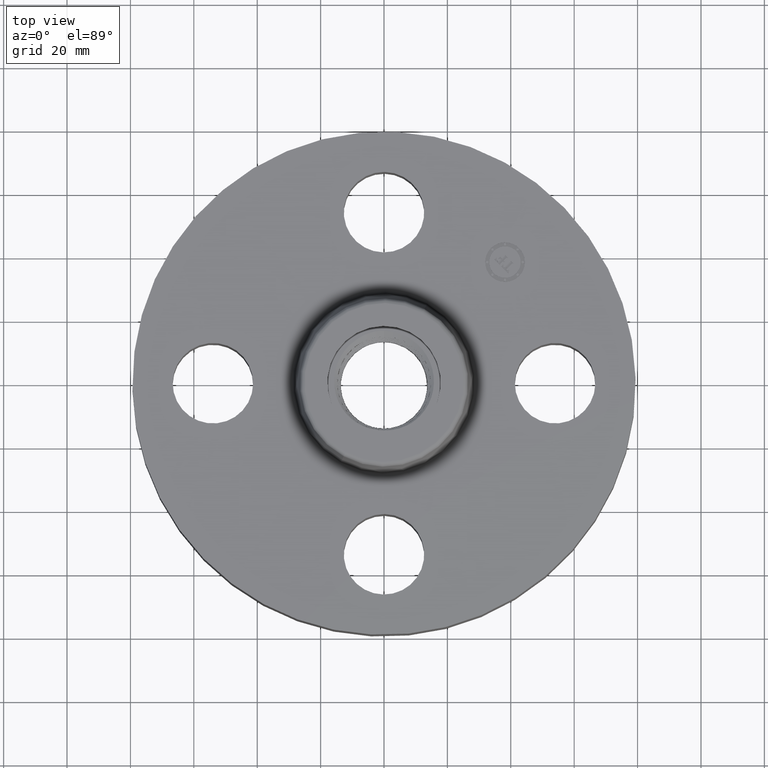
[diagram: clean part render]
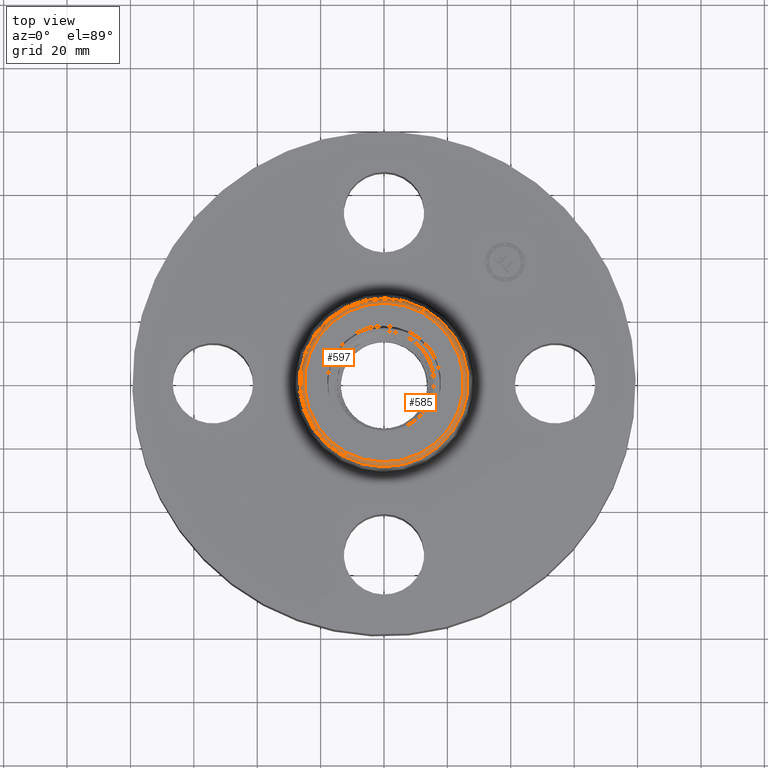
[diagram: same view with one multi-face feature highlighted, each face labeled with its STEP entity id]
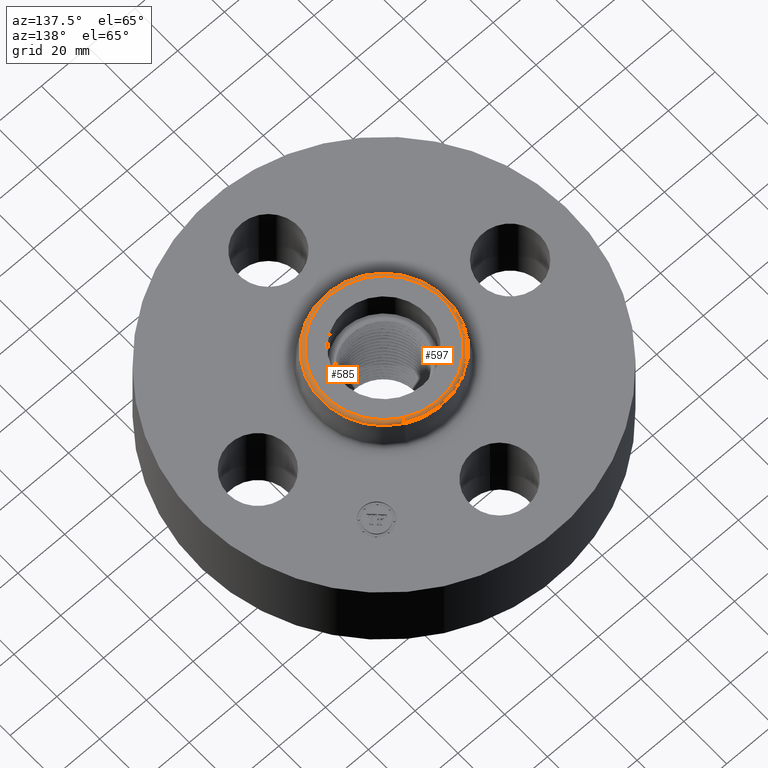
[diagram: same view with one multi-face feature highlighted, each face labeled with its STEP entity id]
A machine part, top view. The highlighted faces form ONE feature: a constant-radius fillet chain: 2 tangent blend faces with common blend radius 1.524 mm. The faces share edges in the B-rep.
A second angle (auxiliary view) of the same feature is appended — it is thin or edge-on in the first view.
Their STEP definitions:
[1] entity #597 (Torus):
#545=AXIS2_PLACEMENT_3D('Circle Axis2P3D',#543,#544,$) ;
#558=AXIS2_PLACEMENT_3D('Torus Axis2P3D',#555,#556,#557) ;
#562=AXIS2_PLACEMENT_3D('Circle Axis2P3D',#560,#561,$) ;
#576=AXIS2_PLACEMENT_3D('Circle Axis2P3D',#574,#575,$) ;
#588=AXIS2_PLACEMENT_3D('Circle Axis2P3D',#586,#587,$) ;
#521=CARTESIAN_POINT('Vertex',(0.501277273771,0.917581894811,1.83041889067)) ;
#528=CARTESIAN_POINT('Vertex',(-0.501277273771,-0.917581894811,1.83041889067)) ;
#543=CARTESIAN_POINT('Axis2P3D Location',(0.,0.,1.83041889067)) ;
#555=CARTESIAN_POINT('Axis2P3D Location',(0.,0.,1.82000000001)) ;
#560=CARTESIAN_POINT('Axis2P3D Location',(0.472948754526,0.865726888159,1.82000000001)) ;
#564=CARTESIAN_POINT('Vertex',(0.472948754526,0.865726888159,1.88000000001)) ;
#571=CARTESIAN_POINT('Vertex',(-0.472948754526,-0.865726888159,1.88000000001)) ;
#574=CARTESIAN_POINT('Axis2P3D Location',(-0.472948754526,-0.865726888159,1.82000000001)) ;
#586=CARTESIAN_POINT('Axis2P3D Location',(0.,0.,1.88000000001)) ;
#544=DIRECTION('Axis2P3D Direction',(0.,0.,-0.0393700787402)) ;
#556=DIRECTION('Axis2P3D Direction',(0.,0.,-0.0393700787402)) ;
#557=DIRECTION('Axis2P3D XDirection',(-0.0188750212049,-0.0345504945626,0.)) ;
#561=DIRECTION('Axis2P3D Direction',(-0.0345504945626,0.0188750212049,0.)) ;
#575=DIRECTION('Axis2P3D Direction',(0.0345504945626,-0.0188750212049,0.)) ;
#587=DIRECTION('Axis2P3D Direction',(0.,0.,-0.0393700787402)) ;
#592=ORIENTED_EDGE('',*,*,#547,.F.) ;
#593=ORIENTED_EDGE('',*,*,#578,.T.) ;
#594=ORIENTED_EDGE('',*,*,#590,.T.) ;
#595=ORIENTED_EDGE('',*,*,#566,.F.) ;
#597=ADVANCED_FACE('PartBody',(#596),#559,.T.) ;
#546=CIRCLE('generated circle',#545,1.04557899696) ;
#563=CIRCLE('generated circle',#562,0.0600000000002) ;
#577=CIRCLE('generated circle',#576,0.0600000000002) ;
#589=CIRCLE('generated circle',#588,0.986490531779) ;
#559=TOROIDAL_SURFACE('homeo Torus',#558,0.986490531779,0.0600000000002) ;
#547=EDGE_CURVE('',#529,#522,#546,.T.) ;
#566=EDGE_CURVE('',#522,#565,#563,.F.) ;
#578=EDGE_CURVE('',#529,#572,#577,.F.) ;
#590=EDGE_CURVE('',#572,#565,#589,.T.) ;
#591=EDGE_LOOP('',(#592,#593,#594,#595)) ;
#596=FACE_OUTER_BOUND('',#591,.T.) ;
#522=VERTEX_POINT('',#521) ;
#529=VERTEX_POINT('',#528) ;
#565=VERTEX_POINT('',#564) ;
#572=VERTEX_POINT('',#571) ;
[2] entity #585 (Torus):
#526=AXIS2_PLACEMENT_3D('Circle Axis2P3D',#524,#525,$) ;
#558=AXIS2_PLACEMENT_3D('Torus Axis2P3D',#555,#556,#557) ;
#562=AXIS2_PLACEMENT_3D('Circle Axis2P3D',#560,#561,$) ;
#569=AXIS2_PLACEMENT_3D('Circle Axis2P3D',#567,#568,$) ;
#576=AXIS2_PLACEMENT_3D('Circle Axis2P3D',#574,#575,$) ;
#521=CARTESIAN_POINT('Vertex',(0.501277273771,0.917581894811,1.83041889067)) ;
#524=CARTESIAN_POINT('Axis2P3D Location',(0.,0.,1.83041889067)) ;
#528=CARTESIAN_POINT('Vertex',(-0.501277273771,-0.917581894811,1.83041889067)) ;
#555=CARTESIAN_POINT('Axis2P3D Location',(0.,0.,1.82000000001)) ;
#560=CARTESIAN_POINT('Axis2P3D Location',(0.472948754526,0.865726888159,1.82000000001)) ;
#564=CARTESIAN_POINT('Vertex',(0.472948754526,0.865726888159,1.88000000001)) ;
#567=CARTESIAN_POINT('Axis2P3D Location',(0.,0.,1.88000000001)) ;
#571=CARTESIAN_POINT('Vertex',(-0.472948754526,-0.865726888159,1.88000000001)) ;
#574=CARTESIAN_POINT('Axis2P3D Location',(-0.472948754526,-0.865726888159,1.82000000001)) ;
#525=DIRECTION('Axis2P3D Direction',(0.,0.,-0.0393700787402)) ;
#556=DIRECTION('Axis2P3D Direction',(0.,0.,-0.0393700787402)) ;
#557=DIRECTION('Axis2P3D XDirection',(-0.0188750212049,-0.0345504945626,0.)) ;
#561=DIRECTION('Axis2P3D Direction',(-0.0345504945626,0.0188750212049,0.)) ;
#568=DIRECTION('Axis2P3D Direction',(0.,0.,-0.0393700787402)) ;
#575=DIRECTION('Axis2P3D Direction',(0.0345504945626,-0.0188750212049,0.)) ;
#580=ORIENTED_EDGE('',*,*,#530,.F.) ;
#581=ORIENTED_EDGE('',*,*,#566,.T.) ;
#582=ORIENTED_EDGE('',*,*,#573,.T.) ;
#583=ORIENTED_EDGE('',*,*,#578,.F.) ;
#585=ADVANCED_FACE('PartBody',(#584),#559,.T.) ;
#527=CIRCLE('generated circle',#526,1.04557899696) ;
#563=CIRCLE('generated circle',#562,0.0600000000002) ;
#570=CIRCLE('generated circle',#569,0.986490531779) ;
#577=CIRCLE('generated circle',#576,0.0600000000002) ;
#559=TOROIDAL_SURFACE('homeo Torus',#558,0.986490531779,0.0600000000002) ;
#530=EDGE_CURVE('',#522,#529,#527,.T.) ;
#566=EDGE_CURVE('',#522,#565,#563,.F.) ;
#573=EDGE_CURVE('',#565,#572,#570,.T.) ;
#578=EDGE_CURVE('',#529,#572,#577,.F.) ;
#579=EDGE_LOOP('',(#580,#581,#582,#583)) ;
#584=FACE_OUTER_BOUND('',#579,.T.) ;
#522=VERTEX_POINT('',#521) ;
#529=VERTEX_POINT('',#528) ;
#565=VERTEX_POINT('',#564) ;
#572=VERTEX_POINT('',#571) ;